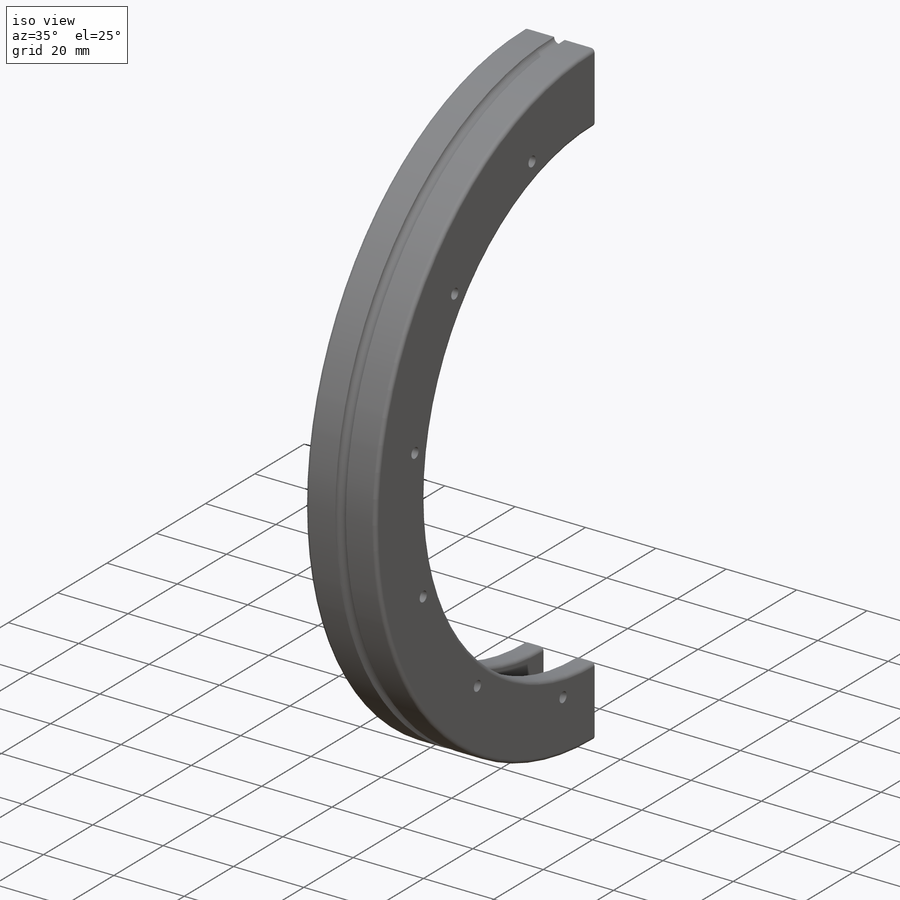
[diagram: iso view]
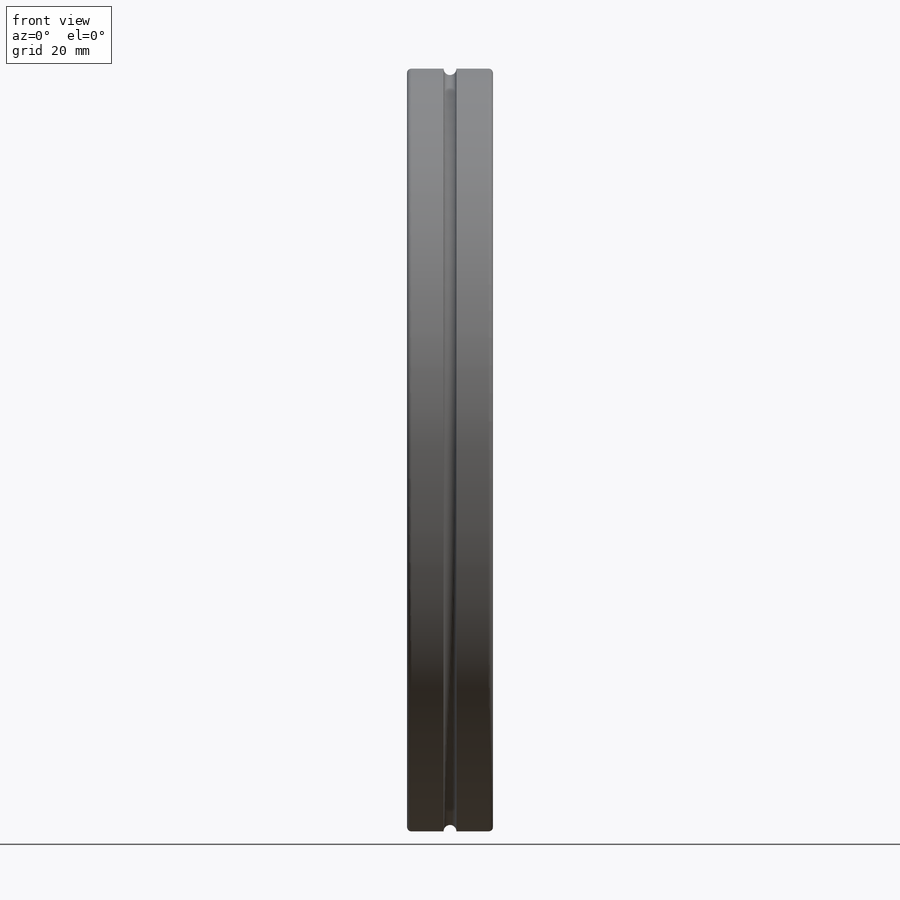
[diagram: front view]
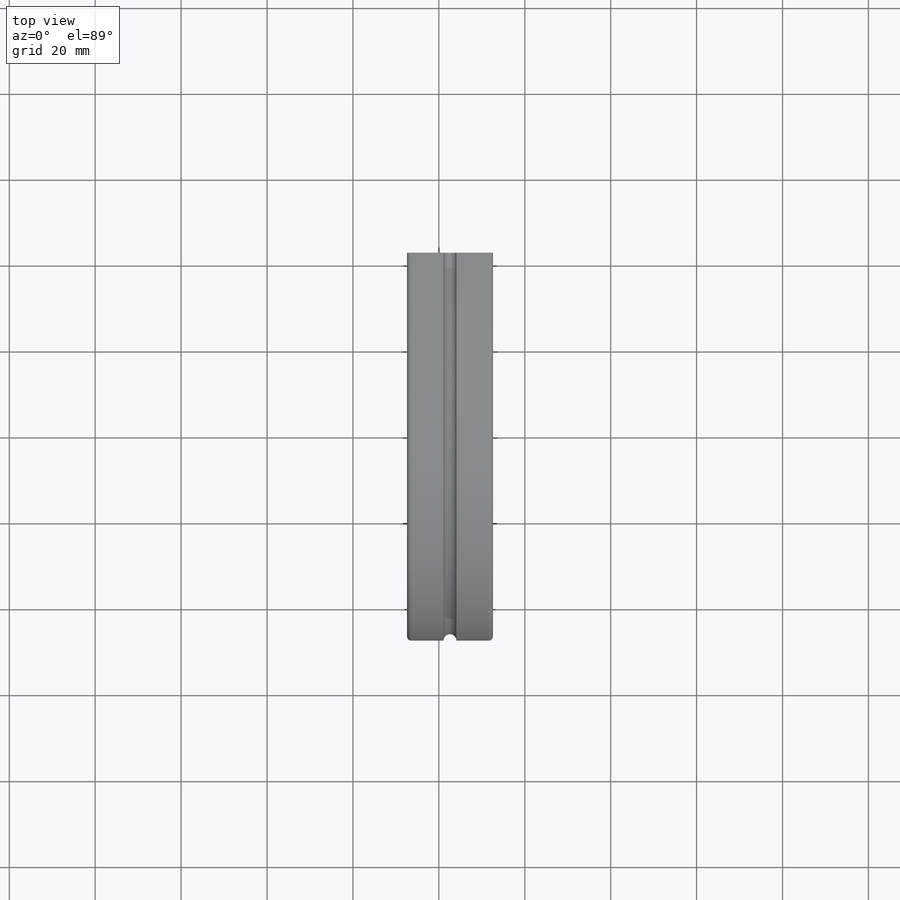
[diagram: top view]
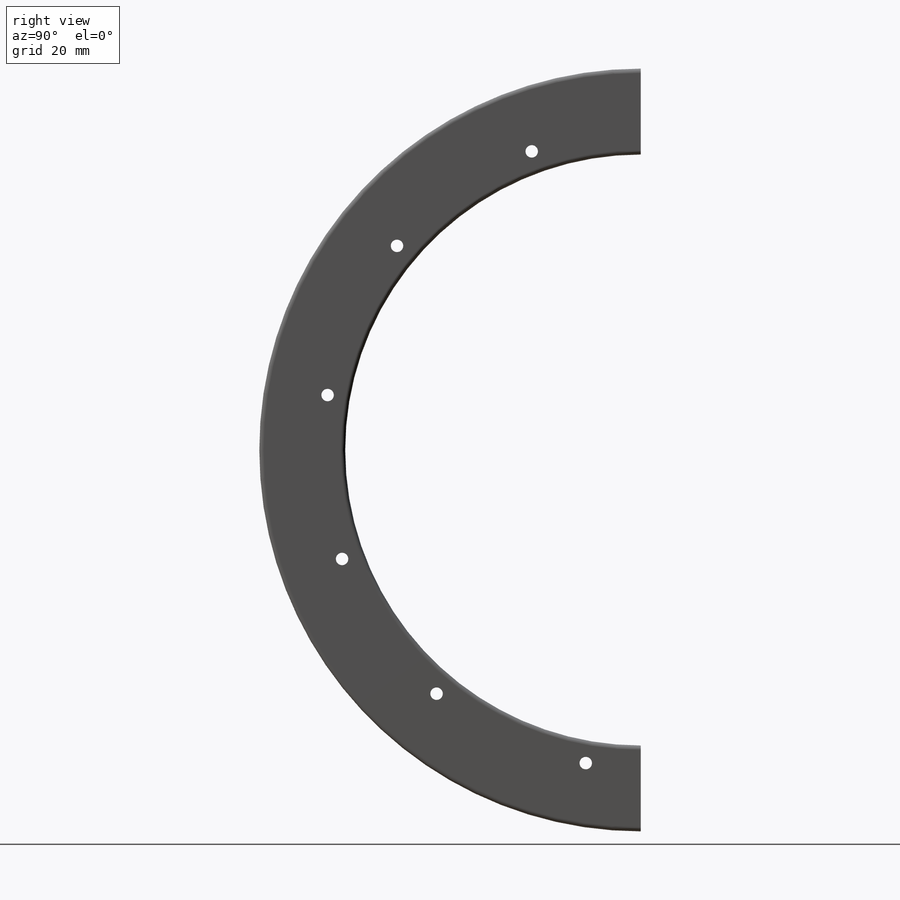
[diagram: right view]
SOLIDWORKS PART (.sldprt)
format: sldprt  version: not decoded by parser v0  size: 274,432 bytes
history: native  units: mm
features: fillet x3, sketch x2, material x1, revolve x1, extrude x1 (+11 scaffold rows collapsed)
feature tree (19):
  scaffold x11  (default folders/planes/origin — collapsed)
  material  "Material <not specified>"
  sketch  "Sketch1"  dims[c1.D5=3.0mm c1.D1=20.0mm c1.D2=9.0mm c1.D3=7.0mm c1.D4=~5.078907mm c2.D3=5.5mm c2.D4=80.0mm c2.D6=10.0mm]
  revolve  "Revolve1"  Angle=180deg
  sketch  "Sketch2"  dims[c1.D1=2.9mm c1.D3=~68.784081mm c1.D2=74.0mm c2.D3=74.0mm c2.D4=74.0mm c2.D5=74.0mm c2.D6=74.0mm c2.D7=37.0mm c2.D8=37.0mm c3.D7=~73.999706mm c3.D9=~74.000203mm c3.D10=~73.999982mm c3.D11=~71.959685mm c3.D12=~53.691104mm c3.D13=~72.886104mm c3.D8=~69.152864mm c4.D13=~74.000203mm c4.D9=74.0mm c4.D14=~72.10592mm c4.D11=30.0deg c4.D12=30.0deg c5.D13=~41.085833deg c5.D8=30.0deg c6.D13=30.0deg c6.D14=30.0deg]
  extrude  "Boss-Extrude5"  Depth=20.4mm
  fillet  "Fillet1"  Radius=1mm
  fillet  "Fillet2"  Radius=1mm
  fillet  "Fillet3"  Radius=1mm
decode coverage: 7 of 7 modeling features carry decoded parameters
note: ~ marks probable driven/reference dimensions
note: suppression state not decoded; provenance and decode notes live in map.json
